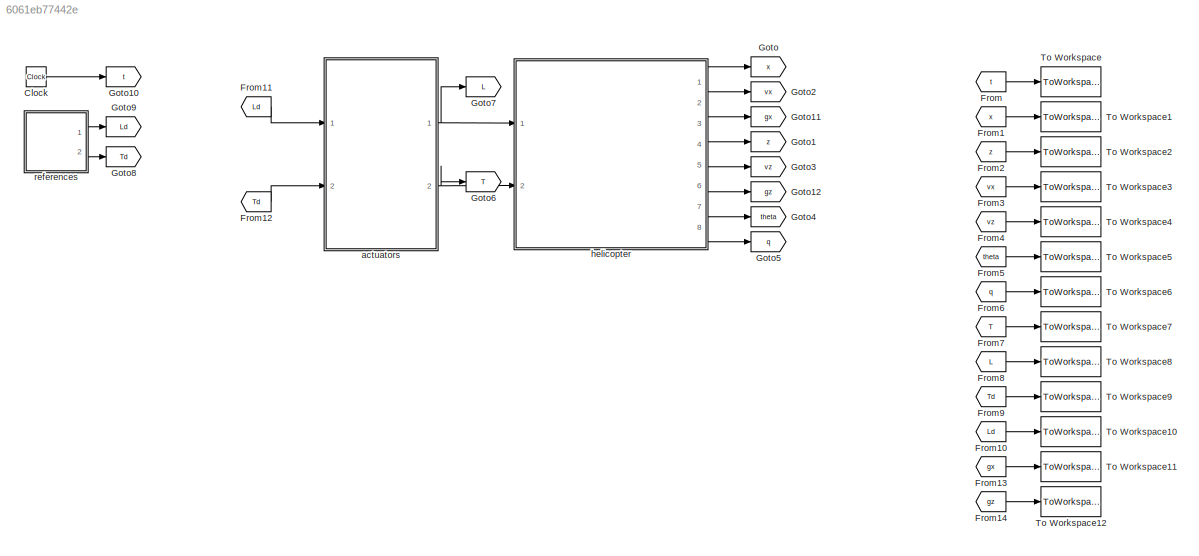
MODEL slx_6061eb77442e
KIND model
CONFIG AbsTol = auto
CONFIG FixedStep = DTsim
CONFIG MaxStep = auto
CONFIG MinStep = auto
CONFIG RelTol = 1e-3
CONFIG SampleTimeConstraint = Unconstrained
CONFIG Solver = ode3
CONFIG SolverMode = Auto
CONFIG SolverName = ode3
CONFIG StartTime = 0.0
CONFIG StopTime = Tsim
BLOCK [Clock] Clock
BLOCK [From] From
  CloseFcn = tagdialog Close
  GotoTag = t
BLOCK [From] From1
  CloseFcn = tagdialog Close
  GotoTag = x
BLOCK [From] From10
  CloseFcn = tagdialog Close
  GotoTag = Ld
BLOCK [From] From11
  CloseFcn = tagdialog Close
  GotoTag = Ld
BLOCK [From] From12
  CloseFcn = tagdialog Close
  GotoTag = Td
BLOCK [From] From13
  CloseFcn = tagdialog Close
  GotoTag = gx
BLOCK [From] From14
  CloseFcn = tagdialog Close
  GotoTag = gz
BLOCK [From] From2
  CloseFcn = tagdialog Close
  GotoTag = z
BLOCK [From] From3
  CloseFcn = tagdialog Close
  GotoTag = vx
BLOCK [From] From4
  CloseFcn = tagdialog Close
  GotoTag = vz
BLOCK [From] From5
  CloseFcn = tagdialog Close
  GotoTag = theta
BLOCK [From] From6
  CloseFcn = tagdialog Close
  GotoTag = q
BLOCK [From] From7
  CloseFcn = tagdialog Close
  GotoTag = T
BLOCK [From] From8
  CloseFcn = tagdialog Close
  GotoTag = L
BLOCK [From] From9
  CloseFcn = tagdialog Close
  GotoTag = Td
BLOCK [Goto] Goto
  GotoTag = x
BLOCK [Goto] Goto1
  GotoTag = z
BLOCK [Goto] Goto10
  GotoTag = t
BLOCK [Goto] Goto11
  GotoTag = gx
BLOCK [Goto] Goto12
  GotoTag = gz
BLOCK [Goto] Goto2
  GotoTag = vx
BLOCK [Goto] Goto3
  GotoTag = vz
BLOCK [Goto] Goto4
  GotoTag = theta
BLOCK [Goto] Goto5
  GotoTag = q
BLOCK [Goto] Goto6
  GotoTag = T
BLOCK [Goto] Goto7
  GotoTag = L
BLOCK [Goto] Goto8
  GotoTag = Td
BLOCK [Goto] Goto9
  GotoTag = Ld
BLOCK [ToWorkspace] To Workspace
  MaxDataPoints = inf
  Ports = [1]
  SampleTime = -1
  VariableName = t
BLOCK [ToWorkspace] To Workspace1
  MaxDataPoints = inf
  Ports = [1]
  SampleTime = -1
  VariableName = x
BLOCK [ToWorkspace] To Workspace10
  MaxDataPoints = inf
  Ports = [1]
  SampleTime = -1
  VariableName = Ld
BLOCK [ToWorkspace] To Workspace11
  MaxDataPoints = inf
  Ports = [1]
  SampleTime = -1
  VariableName = gx
BLOCK [ToWorkspace] To Workspace12
  MaxDataPoints = inf
  Ports = [1]
  SampleTime = -1
  VariableName = gz
BLOCK [ToWorkspace] To Workspace2
  MaxDataPoints = inf
  Ports = [1]
  SampleTime = -1
  VariableName = z
BLOCK [ToWorkspace] To Workspace3
  MaxDataPoints = inf
  Ports = [1]
  SampleTime = -1
  VariableName = vx
BLOCK [ToWorkspace] To Workspace4
  MaxDataPoints = inf
  Ports = [1]
  SampleTime = -1
  VariableName = vz
BLOCK [ToWorkspace] To Workspace5
  MaxDataPoints = inf
  Ports = [1]
  SampleTime = -1
  VariableName = theta
BLOCK [ToWorkspace] To Workspace6
  MaxDataPoints = inf
  Ports = [1]
  SampleTime = -1
  VariableName = q
BLOCK [ToWorkspace] To Workspace7
  MaxDataPoints = inf
  Ports = [1]
  SampleTime = -1
  VariableName = T
BLOCK [ToWorkspace] To Workspace8
  MaxDataPoints = inf
  Ports = [1]
  SampleTime = -1
  VariableName = L
BLOCK [ToWorkspace] To Workspace9
  MaxDataPoints = inf
  Ports = [1]
  SampleTime = -1
  VariableName = Td
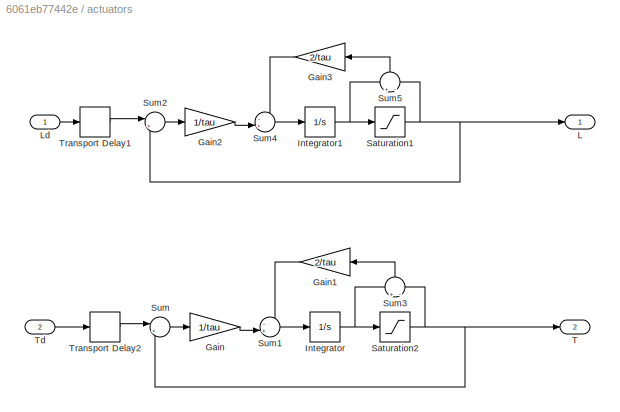
BLOCK [SubSystem] actuators
  Ports = [2, 2]
  RequestExecContextInheritance = off
  TreatAsAtomicUnit = on
  Variant = off
BLOCK [Gain] actuators/Gain
  Gain = 1/tau
  OutDataTypeStr = Inherit: Inherit via internal rule
  ParamDataTypeStr = Inherit: Inherit via internal rule
  SaturateOnIntegerOverflow = off
BLOCK [Gain] actuators/Gain1
  Gain = 2/tau
  OutDataTypeStr = Inherit: Inherit via internal rule
  ParamDataTypeStr = Inherit: Inherit via internal rule
  SaturateOnIntegerOverflow = off
BLOCK [Gain] actuators/Gain2
  Gain = 1/tau
  OutDataTypeStr = Inherit: Inherit via internal rule
  ParamDataTypeStr = Inherit: Inherit via internal rule
  SaturateOnIntegerOverflow = off
BLOCK [Gain] actuators/Gain3
  Gain = 2/tau
  OutDataTypeStr = Inherit: Inherit via internal rule
  ParamDataTypeStr = Inherit: Inherit via internal rule
  SaturateOnIntegerOverflow = off
BLOCK [Integrator] actuators/Integrator
  Ports = [1, 1]
BLOCK [Integrator] actuators/Integrator1
  InitialCondition = m*g
  Ports = [1, 1]
BLOCK [Outport] actuators/L
  IconDisplay = Port number
BLOCK [Inport] actuators/Ld
  IconDisplay = Port number
BLOCK [Saturate] actuators/Saturation1
  InputPortMap = u0
  LowerLimit = Lmin
  Ports = [1, 1]
  UpperLimit = Lmax
BLOCK [Saturate] actuators/Saturation2
  InputPortMap = u0
  LowerLimit = Tmin
  Ports = [1, 1]
  UpperLimit = Tmax
BLOCK [Sum] actuators/Sum
  IconShape = round
  InputSameDT = off
  Inputs = |+-
  OutDataTypeStr = Inherit: Inherit via internal rule
  Ports = [2, 1]
  SaturateOnIntegerOverflow = off
BLOCK [Sum] actuators/Sum1
  IconShape = round
  InputSameDT = off
  Inputs = -+|
  OutDataTypeStr = Inherit: Inherit via internal rule
  Ports = [2, 1]
  SaturateOnIntegerOverflow = off
BLOCK [Sum] actuators/Sum2
  IconShape = round
  InputSameDT = off
  Inputs = |+-
  OutDataTypeStr = Inherit: Inherit via internal rule
  Ports = [2, 1]
  SaturateOnIntegerOverflow = off
BLOCK [Sum] actuators/Sum3
  IconShape = round
  InputSameDT = off
  Inputs = +|-
  OutDataTypeStr = Inherit: Inherit via internal rule
  Ports = [2, 1]
BLOCK [Sum] actuators/Sum4
  IconShape = round
  InputSameDT = off
  Inputs = -+|
  OutDataTypeStr = Inherit: Inherit via internal rule
  Ports = [2, 1]
  SaturateOnIntegerOverflow = off
BLOCK [Sum] actuators/Sum5
  IconShape = round
  InputSameDT = off
  Inputs = +|-
  OutDataTypeStr = Inherit: Inherit via internal rule
  Ports = [2, 1]
BLOCK [Outport] actuators/T
  IconDisplay = Port number
  Port = 2
BLOCK [Inport] actuators/Td
  IconDisplay = Port number
  Port = 2
BLOCK [TransportDelay] actuators/Transport Delay1
  DelayTime = DTsim
  InitialOutput = m*g
  Ports = [1, 1]
BLOCK [TransportDelay] actuators/Transport Delay2
  DelayTime = DTsim
  Ports = [1, 1]
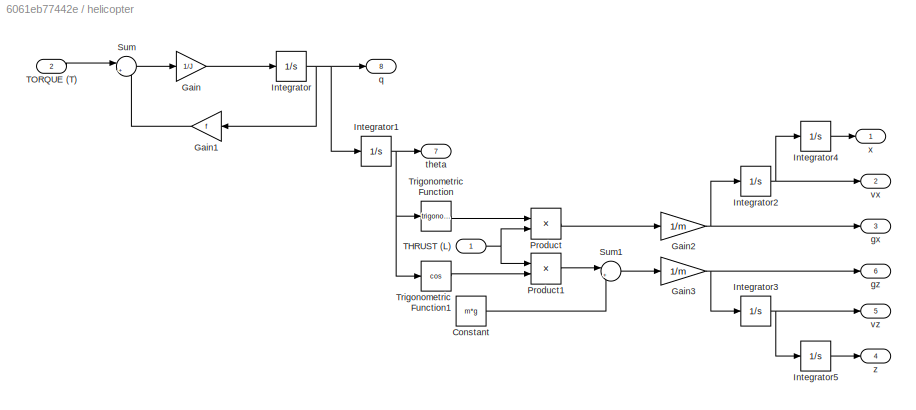
BLOCK [SubSystem] helicopter
  Ports = [2, 8]
  RequestExecContextInheritance = off
  TreatAsAtomicUnit = on
  Variant = off
BLOCK [Constant] helicopter/Constant
  Value = m*g
BLOCK [Gain] helicopter/Gain
  Gain = 1/J
  OutDataTypeStr = Inherit: Inherit via internal rule
  ParamDataTypeStr = Inherit: Inherit via internal rule
  SaturateOnIntegerOverflow = off
BLOCK [Gain] helicopter/Gain1
  Gain = f
  OutDataTypeStr = Inherit: Inherit via internal rule
  ParamDataTypeStr = Inherit: Inherit via internal rule
  SaturateOnIntegerOverflow = off
BLOCK [Gain] helicopter/Gain2
  Gain = 1/m
  OutDataTypeStr = Inherit: Inherit via internal rule
  ParamDataTypeStr = Inherit: Inherit via internal rule
  SaturateOnIntegerOverflow = off
BLOCK [Gain] helicopter/Gain3
  Gain = 1/m
  OutDataTypeStr = Inherit: Inherit via internal rule
  ParamDataTypeStr = Inherit: Inherit via internal rule
  SaturateOnIntegerOverflow = off
BLOCK [Integrator] helicopter/Integrator
  Ports = [1, 1]
BLOCK [Integrator] helicopter/Integrator1
  Ports = [1, 1]
BLOCK [Integrator] helicopter/Integrator2
  Ports = [1, 1]
BLOCK [Integrator] helicopter/Integrator3
  Ports = [1, 1]
BLOCK [Integrator] helicopter/Integrator4
  Ports = [1, 1]
BLOCK [Integrator] helicopter/Integrator5
  Ports = [1, 1]
BLOCK [Product] helicopter/Product
  InputSameDT = off
  OutDataTypeStr = Inherit: Inherit via internal rule
  Ports = [2, 1]
  SaturateOnIntegerOverflow = off
BLOCK [Product] helicopter/Product1
  InputSameDT = off
  OutDataTypeStr = Inherit: Inherit via internal rule
  Ports = [2, 1]
  SaturateOnIntegerOverflow = off
BLOCK [Sum] helicopter/Sum
  IconShape = round
  InputSameDT = off
  Inputs = |+-
  OutDataTypeStr = Inherit: Inherit via internal rule
  Ports = [2, 1]
  SaturateOnIntegerOverflow = off
BLOCK [Sum] helicopter/Sum1
  IconShape = round
  InputSameDT = off
  Inputs = |+-
  OutDataTypeStr = Inherit: Inherit via internal rule
  Ports = [2, 1]
  SaturateOnIntegerOverflow = off
BLOCK [Inport] helicopter/THRUST (L)
  IconDisplay = Port number
BLOCK [Inport] helicopter/TORQUE (T)
  IconDisplay = Port number
  Port = 2
BLOCK [Trigonometry] helicopter/Trigonometric Function
  Ports = [1, 1]
BLOCK [Trigonometry] helicopter/Trigonometric Function1
  Operator = cos
  Ports = [1, 1]
BLOCK [Outport] helicopter/gx
  IconDisplay = Port number
  Port = 3
BLOCK [Outport] helicopter/gz
  IconDisplay = Port number
  Port = 6
BLOCK [Outport] helicopter/q
  IconDisplay = Port number
  Port = 8
BLOCK [Outport] helicopter/theta
  IconDisplay = Port number
  Port = 7
BLOCK [Outport] helicopter/vx
  IconDisplay = Port number
  Port = 2
BLOCK [Outport] helicopter/vz
  IconDisplay = Port number
  Port = 5
BLOCK [Outport] helicopter/x
  IconDisplay = Port number
BLOCK [Outport] helicopter/z
  IconDisplay = Port number
  Port = 4
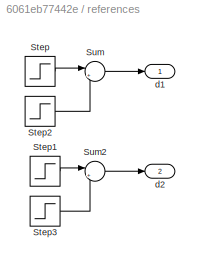
BLOCK [SubSystem] references
  Ports = [0, 2]
  RequestExecContextInheritance = off
  TreatAsAtomicUnit = on
  Variant = off
BLOCK [Step] references/Step
  After = d1_step_final_value
  Before = d1_step_initial_value
  SampleTime = 0
  Time = d1_step_start
BLOCK [Step] references/Step1
  After = d2_step_final_value
  Before = d2_step_initial_value
  SampleTime = 0
  Time = d2_step_start
BLOCK [Step] references/Step2
  After = d1_step_final_value
  SampleTime = 0
  Time = d1_step_stop
BLOCK [Step] references/Step3
  After = d2_step_final_value
  SampleTime = 0
  Time = d2_step_stop
BLOCK [Sum] references/Sum
  IconShape = round
  InputSameDT = off
  Inputs = |+-
  OutDataTypeStr = Inherit: Inherit via internal rule
  Ports = [2, 1]
  SaturateOnIntegerOverflow = off
BLOCK [Sum] references/Sum2
  IconShape = round
  InputSameDT = off
  Inputs = |+-
  OutDataTypeStr = Inherit: Inherit via internal rule
  Ports = [2, 1]
  SaturateOnIntegerOverflow = off
BLOCK [Outport] references/d1
  IconDisplay = Port number
BLOCK [Outport] references/d2
  IconDisplay = Port number
  Port = 2
LINE Clock:1 -> Goto10:1
LINE From10:1 -> To Workspace10:1
LINE From11:1 -> actuators:1
LINE From12:1 -> actuators:2
LINE From13:1 -> To Workspace11:1
LINE From14:1 -> To Workspace12:1
LINE From1:1 -> To Workspace1:1
LINE From2:1 -> To Workspace2:1
LINE From3:1 -> To Workspace3:1
LINE From4:1 -> To Workspace4:1
LINE From5:1 -> To Workspace5:1
LINE From6:1 -> To Workspace6:1
LINE From7:1 -> To Workspace7:1
LINE From8:1 -> To Workspace8:1
LINE From9:1 -> To Workspace9:1
LINE From:1 -> To Workspace:1
LINE actuators/Gain1:1 -> actuators/Sum1:1
LINE actuators/Gain2:1 -> actuators/Sum4:2
LINE actuators/Gain3:1 -> actuators/Sum4:1
LINE actuators/Gain:1 -> actuators/Sum1:2
NET actuators/Integrator1:1 -> actuators/Saturation1:1, actuators/Sum5:1
NET actuators/Integrator:1 -> actuators/Saturation2:1, actuators/Sum3:1
LINE actuators/Ld:1 -> actuators/Transport Delay1:1
NET actuators/Saturation1:1 -> actuators/L:1, actuators/Sum2:2, actuators/Sum5:2
NET actuators/Saturation2:1 -> actuators/Sum3:2, actuators/Sum:2, actuators/T:1
LINE actuators/Sum1:1 -> actuators/Integrator:1
LINE actuators/Sum2:1 -> actuators/Gain2:1
LINE actuators/Sum3:1 -> actuators/Gain1:1
LINE actuators/Sum4:1 -> actuators/Integrator1:1
LINE actuators/Sum5:1 -> actuators/Gain3:1
LINE actuators/Sum:1 -> actuators/Gain:1
LINE actuators/Td:1 -> actuators/Transport Delay2:1
LINE actuators/Transport Delay1:1 -> actuators/Sum2:1
LINE actuators/Transport Delay2:1 -> actuators/Sum:1
NET actuators:1 -> Goto7:1, helicopter:1
NET actuators:2 -> Goto6:1, helicopter:2
LINE helicopter/Constant:1 -> helicopter/Sum1:2
LINE helicopter/Gain1:1 -> helicopter/Sum:2
NET helicopter/Gain2:1 -> helicopter/Integrator2:1, helicopter/gx:1
NET helicopter/Gain3:1 -> helicopter/Integrator3:1, helicopter/gz:1
LINE helicopter/Gain:1 -> helicopter/Integrator:1
NET helicopter/Integrator1:1 -> helicopter/Trigonometric Function1:1, helicopter/Trigonometric Function:1, helicopter/theta:1
NET helicopter/Integrator2:1 -> helicopter/Integrator4:1, helicopter/vx:1
NET helicopter/Integrator3:1 -> helicopter/Integrator5:1, helicopter/vz:1
LINE helicopter/Integrator4:1 -> helicopter/x:1
LINE helicopter/Integrator5:1 -> helicopter/z:1
NET helicopter/Integrator:1 -> helicopter/Gain1:1, helicopter/Integrator1:1, helicopter/q:1
LINE helicopter/Product1:1 -> helicopter/Sum1:1
LINE helicopter/Product:1 -> helicopter/Gain2:1
LINE helicopter/Sum1:1 -> helicopter/Gain3:1
LINE helicopter/Sum:1 -> helicopter/Gain:1
NET helicopter/THRUST (L):1 -> helicopter/Product1:1, helicopter/Product:2
LINE helicopter/TORQUE (T):1 -> helicopter/Sum:1
LINE helicopter/Trigonometric Function1:1 -> helicopter/Product1:2
LINE helicopter/Trigonometric Function:1 -> helicopter/Product:1
LINE helicopter:1 -> Goto:1
LINE helicopter:2 -> Goto2:1
LINE helicopter:3 -> Goto11:1
LINE helicopter:4 -> Goto1:1
LINE helicopter:5 -> Goto3:1
LINE helicopter:6 -> Goto12:1
LINE helicopter:7 -> Goto4:1
LINE helicopter:8 -> Goto5:1
LINE references/Step1:1 -> references/Sum2:1
LINE references/Step2:1 -> references/Sum:2
LINE references/Step3:1 -> references/Sum2:2
LINE references/Step:1 -> references/Sum:1
LINE references/Sum2:1 -> references/d2:1
LINE references/Sum:1 -> references/d1:1
LINE references:1 -> Goto9:1
LINE references:2 -> Goto8:1
note: NET lines group one-source signal fan-out (src -> all destinations, sorted); 1:1 wires keep LINE
